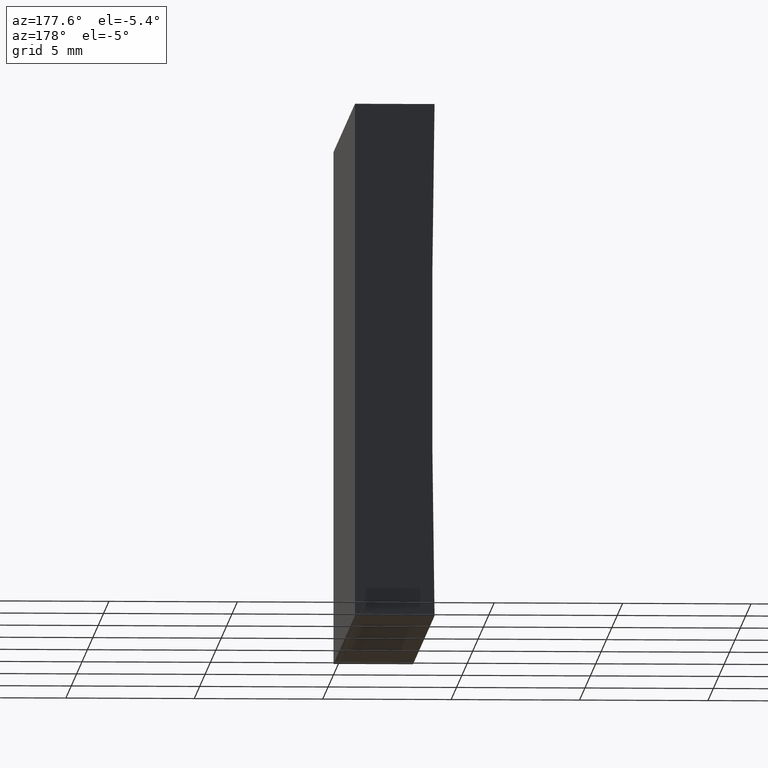
[diagram: clean part render]
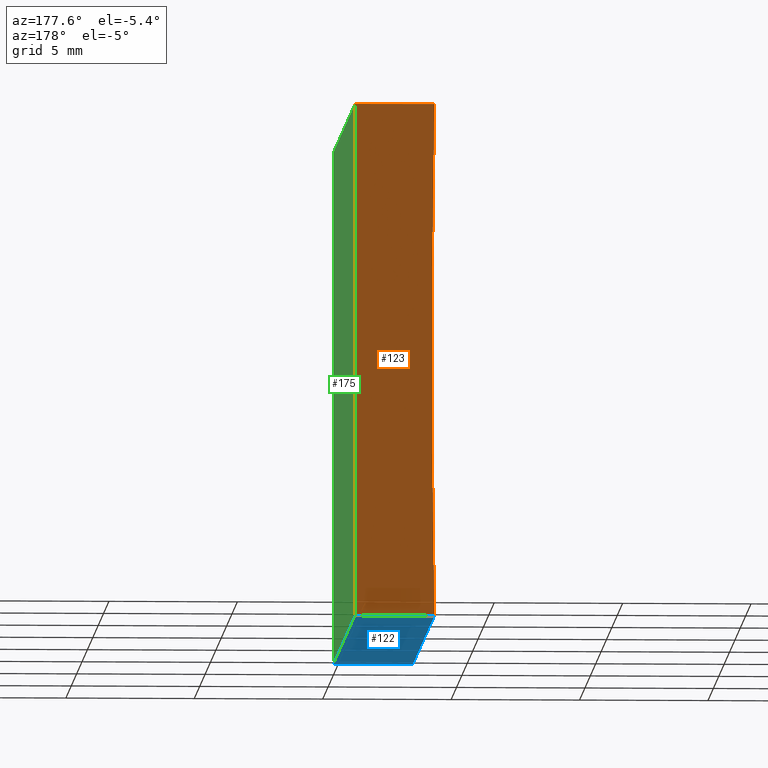
[diagram: same view with three faces highlighted in distinct colors, each labeled with its STEP entity id]
A machine part, auxiliary view with three faces highlighted in distinct colors.
Their STEP definitions:

[orange] entity #123 — the highlighted planar face has unit normal (0, 1, 0).
#1 = ORIENTED_EDGE ( 'NONE', *, *, #177, .T. ) ;
#7 = DIRECTION ( 'NONE',  ( -1.000000000000000000, 0.0000000000000000000, 1.120348000704781900E-015 ) ) ;
#8 = DIRECTION ( 'NONE',  ( 1.000000000000000000, -0.0000000000000000000, 1.120348000704782300E-015 ) ) ;
#19 = LINE ( 'NONE', #75, #168 ) ;
#21 = LINE ( 'NONE', #27, #92 ) ;
#27 = CARTESIAN_POINT ( 'NONE',  ( 0.0000000000000000000, 20.00000000000000000, 0.0000000000000000000 ) ) ;
#28 = VERTEX_POINT ( 'NONE', #99 ) ;
#30 = AXIS2_PLACEMENT_3D ( 'NONE', #44, #131, #84 ) ;
#43 = VERTEX_POINT ( 'NONE', #71 ) ;
#44 = CARTESIAN_POINT ( 'NONE',  ( -519.7999999999999500, 20.00000000000000000, 10.00000000000006600 ) ) ;
#46 = AXIS2_PLACEMENT_3D ( 'NONE', #176, #162, #189 ) ;
#47 = EDGE_CURVE ( 'NONE', #28, #43, #172, .T. ) ;
#68 = PLANE ( 'NONE',  #30 ) ;
#71 = CARTESIAN_POINT ( 'NONE',  ( -3.096758283828839000, 20.00000000000000000, 19.99999999999999600 ) ) ;
#75 = CARTESIAN_POINT ( 'NONE',  ( 1.224646799147353300E-015, 20.00000000000000000, 20.00000000000000000 ) ) ;
#79 = FACE_OUTER_BOUND ( 'NONE', #184, .T. ) ;
#84 = DIRECTION ( 'NONE',  ( 0.0000000000000000000, -0.0000000000000000000, 1.000000000000000000 ) ) ;
#85 = CARTESIAN_POINT ( 'NONE',  ( 0.0000000000000000000, 20.00000000000000000, 0.0000000000000000000 ) ) ;
#92 = VECTOR ( 'NONE', #7, 1000.000000000000000 ) ;
#94 = ORIENTED_EDGE ( 'NONE', *, *, #47, .T. ) ;
#95 = ORIENTED_EDGE ( 'NONE', *, *, #160, .T. ) ;
#99 = CARTESIAN_POINT ( 'NONE',  ( -3.096758283828826600, 20.00000000000000000, 5.551115123125782700E-014 ) ) ;
#107 = VERTEX_POINT ( 'NONE', #85 ) ;
#115 = CARTESIAN_POINT ( 'NONE',  ( 1.224646799147353300E-015, 20.00000000000000000, 20.00000000000000000 ) ) ;
#117 = VECTOR ( 'NONE', #185, 1000.000000000000000 ) ;
#123 = ADVANCED_FACE ( 'NONE', ( #79 ), #68, .T. ) ;
#131 = DIRECTION ( 'NONE',  ( 0.0000000000000000000, 1.000000000000000000, 0.0000000000000000000 ) ) ;
#155 = EDGE_CURVE ( 'NONE', #107, #28, #21, .T. ) ;
#160 = EDGE_CURVE ( 'NONE', #167, #107, #192, .T. ) ;
#162 = DIRECTION ( 'NONE',  ( -0.0000000000000000000, -1.000000000000000000, -0.0000000000000000000 ) ) ;
#167 = VERTEX_POINT ( 'NONE', #115 ) ;
#168 = VECTOR ( 'NONE', #8, 1000.000000000000000 ) ;
#172 = CIRCLE ( 'NONE', #46, 516.7999999999999500 ) ;
#176 = CARTESIAN_POINT ( 'NONE',  ( -519.7999999999999500, 20.00000000000000000, 10.00000000000006600 ) ) ;
#177 = EDGE_CURVE ( 'NONE', #43, #167, #19, .T. ) ;
#183 = CARTESIAN_POINT ( 'NONE',  ( 0.0000000000000000000, 20.00000000000000000, 0.0000000000000000000 ) ) ;
#184 = EDGE_LOOP ( 'NONE', ( #197, #94, #1, #95 ) ) ;
#185 = DIRECTION ( 'NONE',  ( -6.123233995736766000E-017, -0.0000000000000000000, -1.000000000000000000 ) ) ;
#189 = DIRECTION ( 'NONE',  ( 0.0000000000000000000, 0.0000000000000000000, 1.000000000000000000 ) ) ;
#192 = LINE ( 'NONE', #183, #117 ) ;
#197 = ORIENTED_EDGE ( 'NONE', *, *, #155, .T. ) ;

[blue] entity #122 — the highlighted planar face has unit normal (0, -0, 1).
#7 = DIRECTION ( 'NONE',  ( -1.000000000000000000, 0.0000000000000000000, 1.120348000704781900E-015 ) ) ;
#15 = VERTEX_POINT ( 'NONE', #199 ) ;
#20 = CARTESIAN_POINT ( 'NONE',  ( 0.0000000000000000000, 20.00000000000000000, 0.0000000000000000000 ) ) ;
#21 = LINE ( 'NONE', #27, #92 ) ;
#22 = EDGE_CURVE ( 'NONE', #107, #111, #119, .T. ) ;
#24 = DIRECTION ( 'NONE',  ( 1.120348000704781900E-015, -0.0000000000000000000, 1.000000000000000000 ) ) ;
#27 = CARTESIAN_POINT ( 'NONE',  ( 0.0000000000000000000, 20.00000000000000000, 0.0000000000000000000 ) ) ;
#28 = VERTEX_POINT ( 'NONE', #99 ) ;
#38 = DIRECTION ( 'NONE',  ( -0.0000000000000000000, -1.000000000000000000, -0.0000000000000000000 ) ) ;
#57 = ORIENTED_EDGE ( 'NONE', *, *, #155, .F. ) ;
#67 = DIRECTION ( 'NONE',  ( -0.0000000000000000000, -1.000000000000000000, -0.0000000000000000000 ) ) ;
#69 = DIRECTION ( 'NONE',  ( -1.000000000000000000, 0.0000000000000000000, 1.120348000704781900E-015 ) ) ;
#72 = VECTOR ( 'NONE', #69, 1000.000000000000000 ) ;
#74 = AXIS2_PLACEMENT_3D ( 'NONE', #96, #24, #182 ) ;
#85 = CARTESIAN_POINT ( 'NONE',  ( 0.0000000000000000000, 20.00000000000000000, 0.0000000000000000000 ) ) ;
#89 = LINE ( 'NONE', #157, #72 ) ;
#90 = VECTOR ( 'NONE', #67, 1000.000000000000000 ) ;
#92 = VECTOR ( 'NONE', #7, 1000.000000000000000 ) ;
#93 = VECTOR ( 'NONE', #38, 1000.000000000000000 ) ;
#96 = CARTESIAN_POINT ( 'NONE',  ( 0.0000000000000000000, 20.00000000000000000, 0.0000000000000000000 ) ) ;
#99 = CARTESIAN_POINT ( 'NONE',  ( -3.096758283828826600, 20.00000000000000000, 5.551115123125782700E-014 ) ) ;
#107 = VERTEX_POINT ( 'NONE', #85 ) ;
#111 = VERTEX_POINT ( 'NONE', #124 ) ;
#116 = ORIENTED_EDGE ( 'NONE', *, *, #22, .T. ) ;
#119 = LINE ( 'NONE', #20, #93 ) ;
#122 = ADVANCED_FACE ( 'NONE', ( #138 ), #198, .F. ) ;
#124 = CARTESIAN_POINT ( 'NONE',  ( 0.0000000000000000000, 0.0000000000000000000, 0.0000000000000000000 ) ) ;
#128 = EDGE_LOOP ( 'NONE', ( #161, #134, #57, #116 ) ) ;
#129 = CARTESIAN_POINT ( 'NONE',  ( -3.096758283828826600, 20.00000000000000000, 5.551115123125782700E-014 ) ) ;
#134 = ORIENTED_EDGE ( 'NONE', *, *, #180, .F. ) ;
#138 = FACE_OUTER_BOUND ( 'NONE', #128, .T. ) ;
#154 = LINE ( 'NONE', #129, #90 ) ;
#155 = EDGE_CURVE ( 'NONE', #107, #28, #21, .T. ) ;
#157 = CARTESIAN_POINT ( 'NONE',  ( 0.0000000000000000000, 0.0000000000000000000, 0.0000000000000000000 ) ) ;
#161 = ORIENTED_EDGE ( 'NONE', *, *, #187, .T. ) ;
#180 = EDGE_CURVE ( 'NONE', #28, #15, #154, .T. ) ;
#182 = DIRECTION ( 'NONE',  ( 1.000000000000000000, 0.0000000000000000000, -1.120348000704781900E-015 ) ) ;
#187 = EDGE_CURVE ( 'NONE', #111, #15, #89, .T. ) ;
#198 = PLANE ( 'NONE',  #74 ) ;
#199 = CARTESIAN_POINT ( 'NONE',  ( -3.096758283828826600, 0.0000000000000000000, 5.551115123125782700E-014 ) ) ;

[green] entity #175 — the highlighted planar face has unit normal (-1, 0, 0).
#5 = FACE_OUTER_BOUND ( 'NONE', #171, .T. ) ;
#10 = DIRECTION ( 'NONE',  ( 6.123233995736766000E-017, 0.0000000000000000000, 1.000000000000000000 ) ) ;
#18 = VERTEX_POINT ( 'NONE', #132 ) ;
#20 = CARTESIAN_POINT ( 'NONE',  ( 0.0000000000000000000, 20.00000000000000000, 0.0000000000000000000 ) ) ;
#22 = EDGE_CURVE ( 'NONE', #107, #111, #119, .T. ) ;
#32 = ORIENTED_EDGE ( 'NONE', *, *, #22, .F. ) ;
#35 = CARTESIAN_POINT ( 'NONE',  ( 1.224646799147353300E-015, 20.00000000000000000, 20.00000000000000000 ) ) ;
#38 = DIRECTION ( 'NONE',  ( -0.0000000000000000000, -1.000000000000000000, -0.0000000000000000000 ) ) ;
#49 = VECTOR ( 'NONE', #152, 1000.000000000000000 ) ;
#52 = LINE ( 'NONE', #35, #49 ) ;
#55 = CARTESIAN_POINT ( 'NONE',  ( 0.0000000000000000000, 0.0000000000000000000, 0.0000000000000000000 ) ) ;
#85 = CARTESIAN_POINT ( 'NONE',  ( 0.0000000000000000000, 20.00000000000000000, 0.0000000000000000000 ) ) ;
#93 = VECTOR ( 'NONE', #38, 1000.000000000000000 ) ;
#107 = VERTEX_POINT ( 'NONE', #85 ) ;
#109 = PLANE ( 'NONE',  #141 ) ;
#111 = VERTEX_POINT ( 'NONE', #124 ) ;
#113 = DIRECTION ( 'NONE',  ( -6.123233995736766000E-017, -0.0000000000000000000, -1.000000000000000000 ) ) ;
#115 = CARTESIAN_POINT ( 'NONE',  ( 1.224646799147353300E-015, 20.00000000000000000, 20.00000000000000000 ) ) ;
#117 = VECTOR ( 'NONE', #185, 1000.000000000000000 ) ;
#119 = LINE ( 'NONE', #20, #93 ) ;
#124 = CARTESIAN_POINT ( 'NONE',  ( 0.0000000000000000000, 0.0000000000000000000, 0.0000000000000000000 ) ) ;
#127 = DIRECTION ( 'NONE',  ( -1.000000000000000000, 0.0000000000000000000, 6.123233995736766000E-017 ) ) ;
#132 = CARTESIAN_POINT ( 'NONE',  ( 1.224646799147353300E-015, 0.0000000000000000000, 20.00000000000000000 ) ) ;
#141 = AXIS2_PLACEMENT_3D ( 'NONE', #191, #127, #10 ) ;
#152 = DIRECTION ( 'NONE',  ( -0.0000000000000000000, -1.000000000000000000, -0.0000000000000000000 ) ) ;
#153 = ORIENTED_EDGE ( 'NONE', *, *, #173, .T. ) ;
#156 = LINE ( 'NONE', #55, #201 ) ;
#160 = EDGE_CURVE ( 'NONE', #167, #107, #192, .T. ) ;
#164 = EDGE_CURVE ( 'NONE', #18, #111, #156, .T. ) ;
#167 = VERTEX_POINT ( 'NONE', #115 ) ;
#170 = ORIENTED_EDGE ( 'NONE', *, *, #160, .F. ) ;
#171 = EDGE_LOOP ( 'NONE', ( #203, #32, #170, #153 ) ) ;
#173 = EDGE_CURVE ( 'NONE', #167, #18, #52, .T. ) ;
#175 = ADVANCED_FACE ( 'NONE', ( #5 ), #109, .F. ) ;
#183 = CARTESIAN_POINT ( 'NONE',  ( 0.0000000000000000000, 20.00000000000000000, 0.0000000000000000000 ) ) ;
#185 = DIRECTION ( 'NONE',  ( -6.123233995736766000E-017, -0.0000000000000000000, -1.000000000000000000 ) ) ;
#191 = CARTESIAN_POINT ( 'NONE',  ( 0.0000000000000000000, 20.00000000000000000, 0.0000000000000000000 ) ) ;
#192 = LINE ( 'NONE', #183, #117 ) ;
#201 = VECTOR ( 'NONE', #113, 1000.000000000000000 ) ;
#203 = ORIENTED_EDGE ( 'NONE', *, *, #164, .T. ) ;